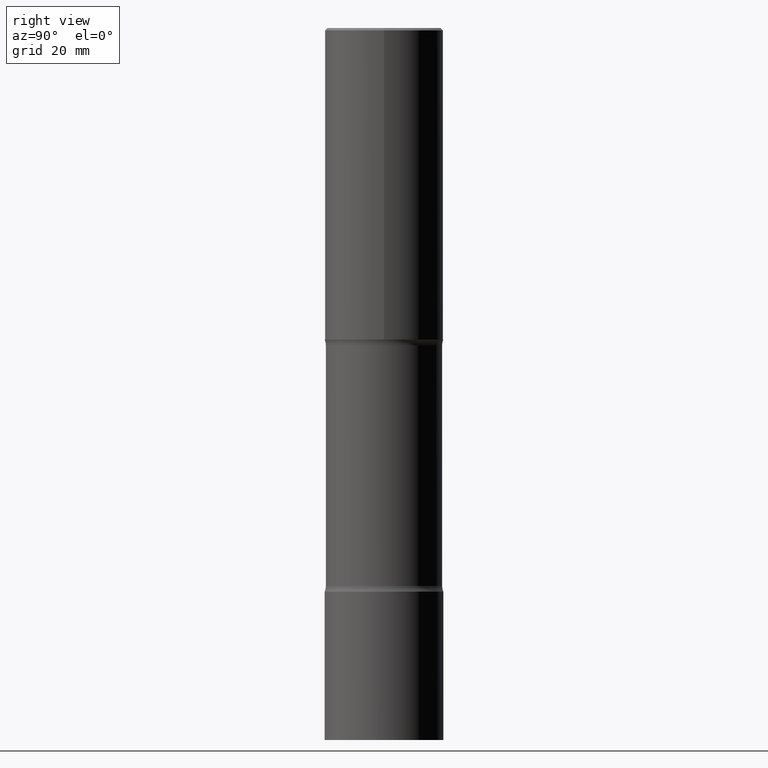
[diagram: clean part render]
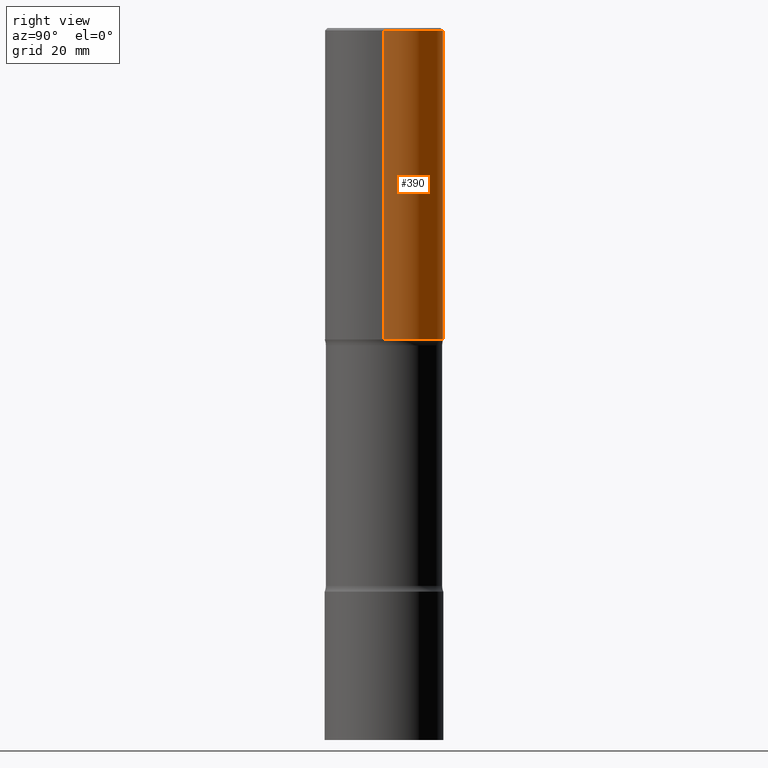
[diagram: same view with one face highlighted and labeled with its STEP entity id]
A machine part, right view. The second image highlights one B-rep face of the part: STEP entity #390.
In plain terms, the highlighted cylindrical surface (partial cylindrical patch) has radius 12.7 mm, axis along (-0, 0, 1).
Its self-contained STEP definition (entity closure, byte-faithful):
#13 = VERTEX_POINT ( 'NONE', #148 ) ;
#20 = VERTEX_POINT ( 'NONE', #350 ) ;
#37 = EDGE_LOOP ( 'NONE', ( #225, #448, #341, #405 ) ) ;
#55 = CARTESIAN_POINT ( 'NONE',  ( 0.000000000000000000, 0.000000000000000000, 0.000000000000000000 ) ) ;
#90 = DIRECTION ( 'NONE',  ( -2.445468806185136597E-29, 3.491481338843145583E-15, 1.000000000000000000 ) ) ;
#97 = VECTOR ( 'NONE', #372, 39.37007874015748143 ) ;
#99 = VERTEX_POINT ( 'NONE', #463 ) ;
#104 = CARTESIAN_POINT ( 'NONE',  ( 0.4999999999999997780, -3.491481338843131778E-15, 2.438088387897966775E-29 ) ) ;
#132 = VECTOR ( 'NONE', #261, 39.37007874015748143 ) ;
#145 = AXIS2_PLACEMENT_3D ( 'NONE', #55, #459, #274 ) ;
#148 = CARTESIAN_POINT ( 'NONE',  ( 0.5000000000000000000, -1.265661985330639628E-14, -2.625000000000001776 ) ) ;
#164 = DIRECTION ( 'NONE',  ( -2.445468806185136597E-29, 3.491481338843145583E-15, 1.000000000000000000 ) ) ;
#185 = CYLINDRICAL_SURFACE ( 'NONE', #145, 0.4999999999999997780 ) ;
#197 = EDGE_CURVE ( 'NONE', #20, #99, #342, .T. ) ;
#200 = AXIS2_PLACEMENT_3D ( 'NONE', #258, #164, #293 ) ;
#225 = ORIENTED_EDGE ( 'NONE', *, *, #486, .T. ) ;
#234 = CARTESIAN_POINT ( 'NONE',  ( -0.5000000000000000000, -1.064770391819559223E-15, -2.625000000000001776 ) ) ;
#254 = CARTESIAN_POINT ( 'NONE',  ( 4.890937612370289799E-31, -6.982962677686315028E-17, -0.02000000000000006981 ) ) ;
#257 = DIRECTION ( 'NONE',  ( 1.000000000000000000, -6.982962677686266711E-15, 0.000000000000000000 ) ) ;
#258 = CARTESIAN_POINT ( 'NONE',  ( 6.419355616235988051E-29, -9.165138514463262923E-15, -2.625000000000001776 ) ) ;
#261 = DIRECTION ( 'NONE',  ( -2.445468806185136877E-29, 3.491481338843145188E-15, 1.000000000000000000 ) ) ;
#274 = DIRECTION ( 'NONE',  ( 1.000000000000000000, -6.982962677686266711E-15, 4.876176775795935793E-29 ) ) ;
#293 = DIRECTION ( 'NONE',  ( 1.000000000000000000, -6.982962677686266711E-15, 0.000000000000000000 ) ) ;
#341 = ORIENTED_EDGE ( 'NONE', *, *, #197, .F. ) ;
#342 = CIRCLE ( 'NONE', #409, 0.4999999999999996114 ) ;
#350 = CARTESIAN_POINT ( 'NONE',  ( 0.4999999999999996114, -3.500078625662626318E-15, -0.02000000000000006981 ) ) ;
#372 = DIRECTION ( 'NONE',  ( -2.445468806185136877E-29, 3.491481338843145188E-15, 1.000000000000000000 ) ) ;
#390 = ADVANCED_FACE ( 'NONE', ( #421 ), #185, .T. ) ;
#395 = CIRCLE ( 'NONE', #200, 0.5000000000000000000 ) ;
#405 = ORIENTED_EDGE ( 'NONE', *, *, #424, .F. ) ;
#409 = AXIS2_PLACEMENT_3D ( 'NONE', #254, #90, #257 ) ;
#411 = LINE ( 'NONE', #495, #97 ) ;
#421 = FACE_OUTER_BOUND ( 'NONE', #37, .T. ) ;
#424 = EDGE_CURVE ( 'NONE', #13, #20, #453, .T. ) ;
#435 = EDGE_CURVE ( 'NONE', #454, #99, #411, .T. ) ;
#448 = ORIENTED_EDGE ( 'NONE', *, *, #435, .T. ) ;
#453 = LINE ( 'NONE', #104, #132 ) ;
#454 = VERTEX_POINT ( 'NONE', #234 ) ;
#459 = DIRECTION ( 'NONE',  ( -2.445468806185136597E-29, 3.491481338843145583E-15, 1.000000000000000000 ) ) ;
#463 = CARTESIAN_POINT ( 'NONE',  ( -0.4999999999999996114, 3.421651712066267296E-15, -0.02000000000000006981 ) ) ;
#486 = EDGE_CURVE ( 'NONE', #13, #454, #395, .T. ) ;
#495 = CARTESIAN_POINT ( 'NONE',  ( -0.4999999999999997780, 3.552713678800499352E-15, -2.459467545127452050E-29 ) ) ;